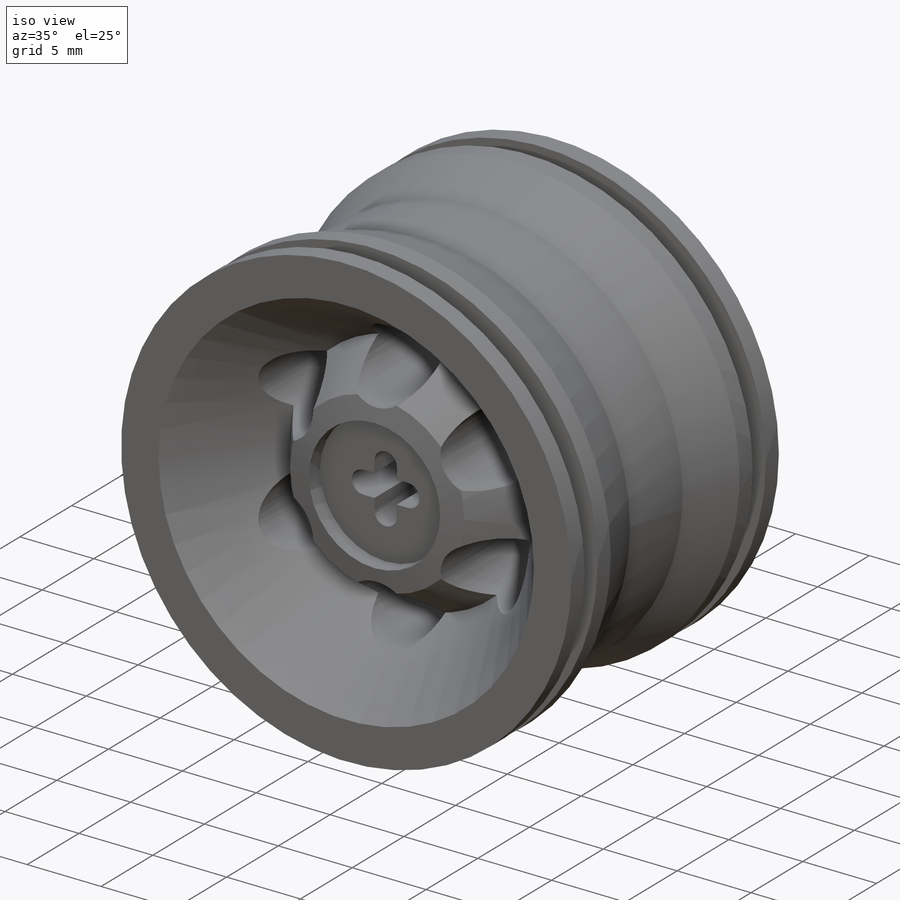
[diagram: iso view]
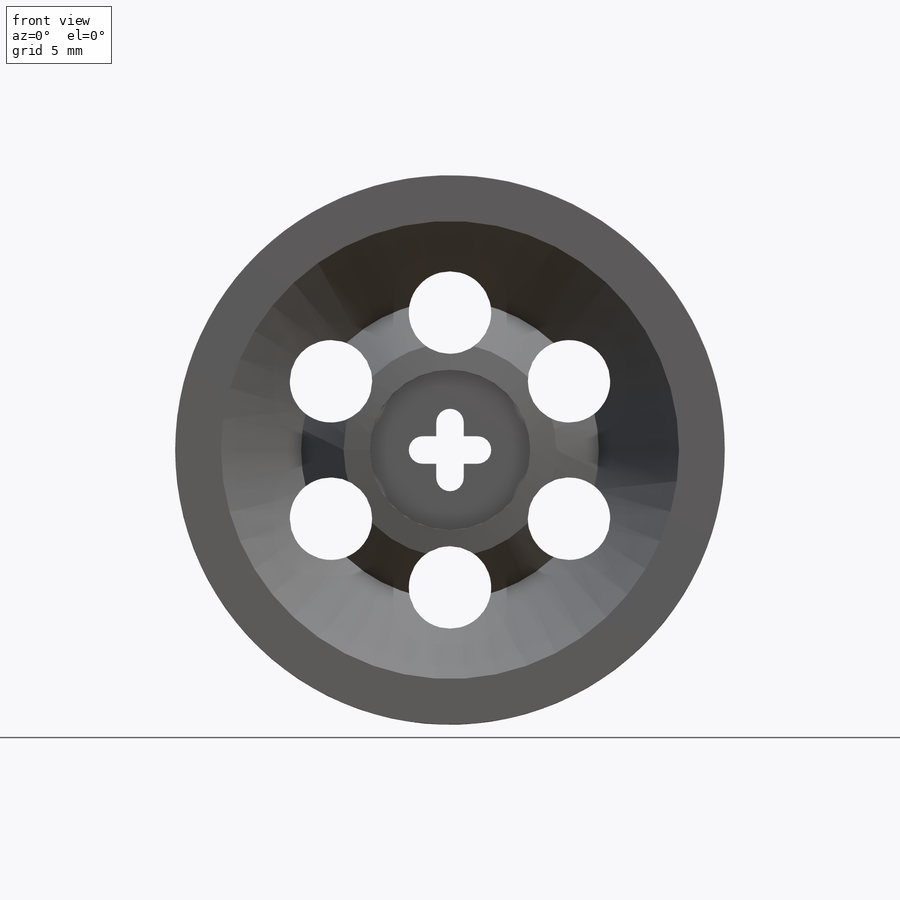
[diagram: front view]
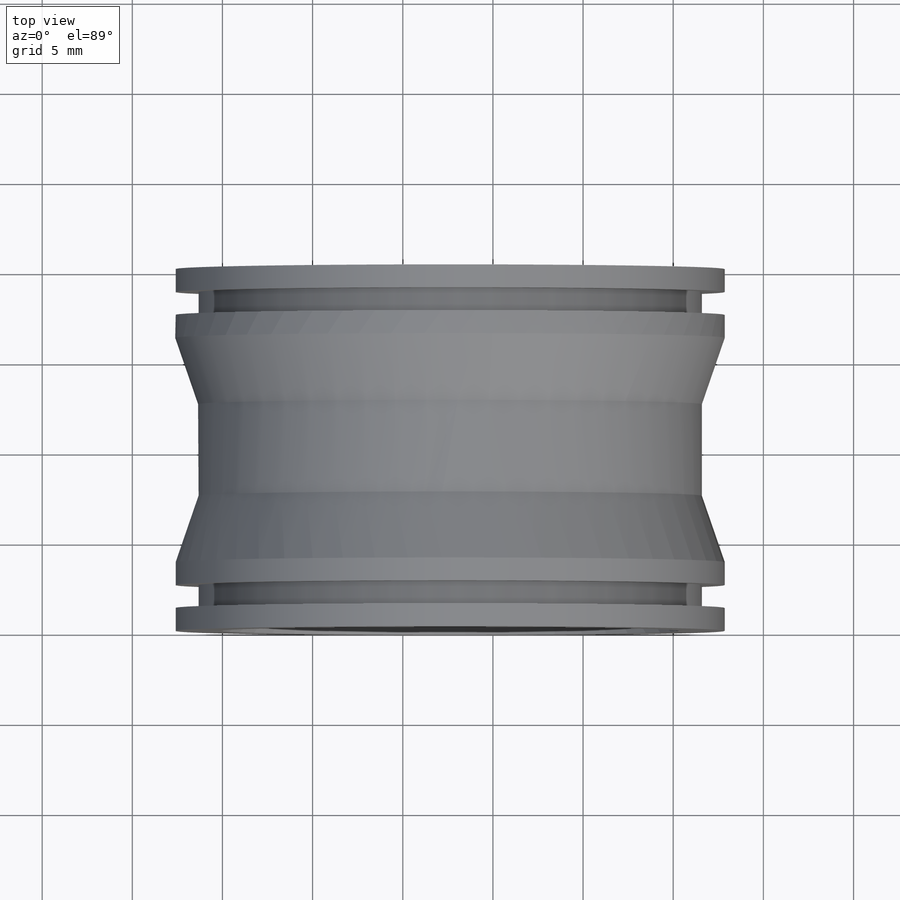
[diagram: top view]
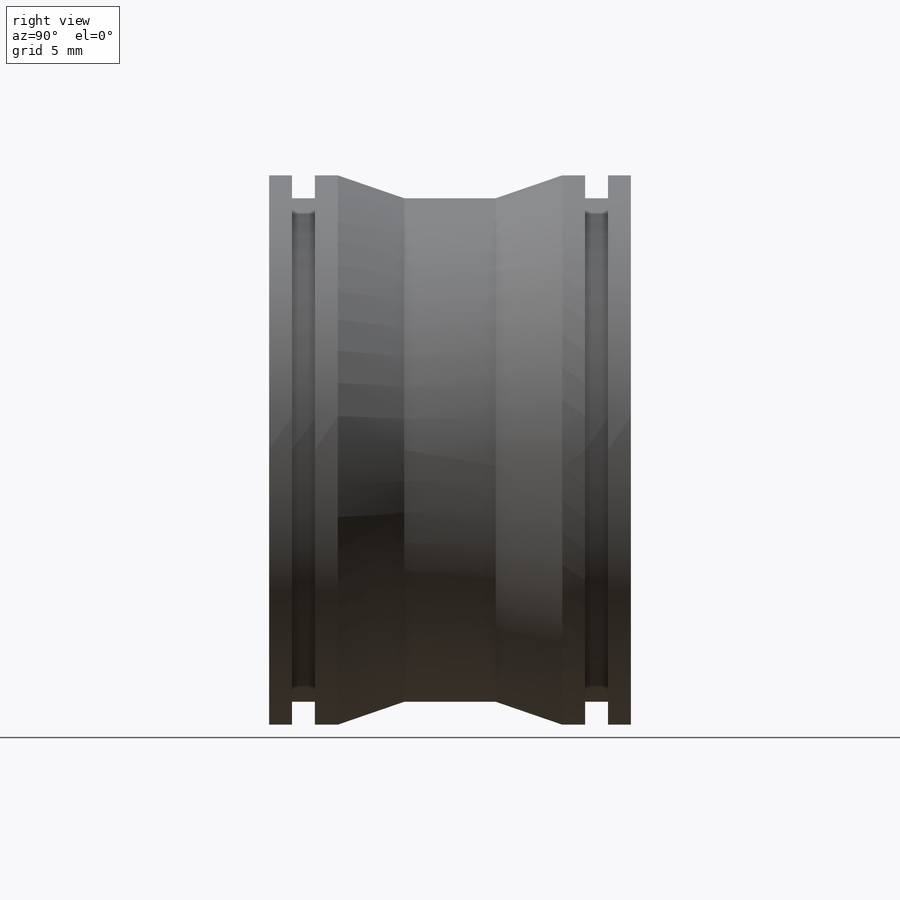
[diagram: right view]
SOLIDWORKS PART (.sldprt)
format: sldprt  version: not decoded by parser v0  size: 850,432 bytes
history: native  units: mm
features: sketch x18, cut_extrude x9, extrude x6, mirror x3, material x1, plane x1, revolve x1, chamfer x1 (+11 scaffold rows collapsed)
feature tree (51):
  scaffold x11  (default folders/planes/origin — collapsed)
  material  "PVC Rigid"
  sketch  "Sketch1"  dims[D1=7.62mm D2=4.572mm D3=7.62mm]
  extrude  "Extrude1"  Depth=3.81mm
  plane  "Plane1"  Offset=3.81mm
  sketch  "Sketch4"  dims[D2=3.81mm D1=7.62mm]
  extrude  "Extrude2"  Depth=0.508mm
  sketch  "Sketch6"  dims[D6=0.254mm D1=4.572mm D2=4.572mm D3=1.524mm D4=1.524mm D5=1.524mm]
  cut_extrude  "Cut-Extrude2"  [1 undecoded]
  sketch  "Sketch8"  dims[D1=5.588mm D2=6.35mm D3=0.762mm]
  extrude  "Extrude3"  Depth=3.302mm
  sketch  "Sketch9"  dims[D1=0.1905mm]
  extrude  "Extrude4"  [1 undecoded]
  mirror  "Mirror5"
  sketch  "Sketch11"  dims[D1=4.572mm D2=8.001mm]
  cut_extrude  "Cut-Extrude3"  [1 undecoded]
  sketch  "Sketch12"  dims[D1=6.35mm]
  cut_extrude  "Cut-Extrude4"  Depth=0.508mm
  mirror  "Mirror6"
  sketch  "Sketch13"
  cut_extrude  "Cut-Extrude5"  [1 undecoded]
  sketch  "Sketch15"
  cut_extrude  "Cut-Extrude7"  [1 undecoded]
  sketch  "Sketch18"
  sketch  "Sketch17"  dims[c1.D1=~2.088854mm c2.D1=90.0deg c3.D1=20.066mm c3.D2=~1.253313mm c4.D2=90.0deg c4.D3=10.795mm c5.D2=1.27mm c5.D3=1.27mm c5.D4=1.27mm c5.D5=5.08mm c5.D6=1.27mm c5.D7=~8.032185mm c6.D7=~161.565051deg c7.D7=15.24mm c7.D8=15.24mm c8.D7=15.24mm c8.D8=12.446mm]
  revolve  "Revolve1"  Angle=360deg
  sketch  "Sketch20"  dims[D1=15.24mm D2=4.572mm]
  cut_extrude  "Extrude6"  [1 undecoded]
  sketch  "Sketch21"  dims[D1=7.62mm D2=25.4mm]
  cut_extrude  "Extrude7"  Depth=10.16mm
  mirror  "Mirror7"
  sketch  "Sketch22"  dims[c1.D1=27.94mm c1.D2=25.4mm c1.D3=~3.370422mm c2.D3=135.0deg c2.D4=~4.27915mm c3.D4=135.0deg c4.D4=~1.755885mm c5.D4=135.0deg c6.D4=10.16mm c6.D5=1.27mm c6.D6=2.54mm]
  sketch  "Sketch23"  dims[D1=8.89mm]
  cut_extrude  "Extrude8"  Depth=3.81mm
  sketch  "Sketch24"
  cut_extrude  "Extrude9"  Depth=3.81mm
  sketch  "Sketch25"  dims[D2=1.524mm D3=1.524mm D4=3.048mm D1=0.0mm]
  extrude  "Extrude10"  Depth=3.81mm
  sketch  "Sketch26"  dims[D2=1.524mm D3=1.524mm D4=3.048mm D1=0.0mm]
  extrude  "Extrude11"  Depth=3.81mm
  chamfer  "Chamfer1"  Distance=2.54mm Angle=45deg
decode coverage: 25 of 38 modeling features carry decoded parameters
note: ~ marks probable driven/reference dimensions
note: 6 parameter values undecoded
summary: no parameter record found for 6 features
note: suppression state not decoded; provenance and decode notes live in map.json
